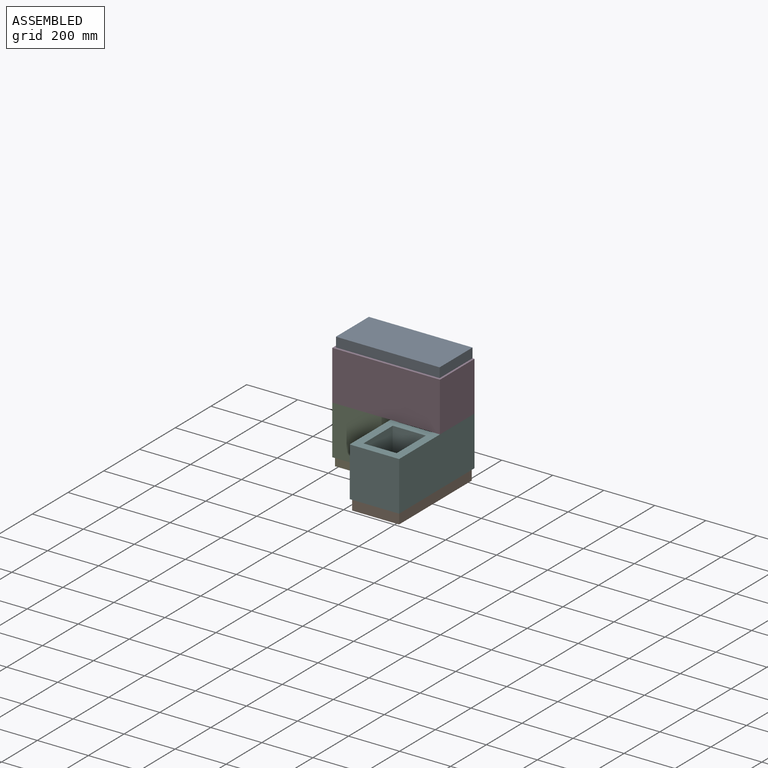
[diagram: assembled view]
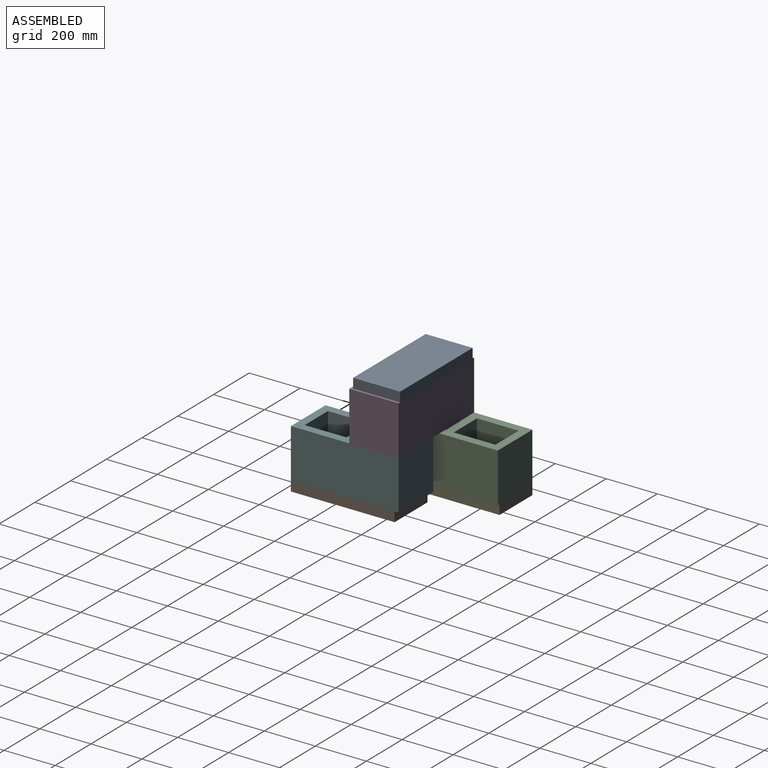
[diagram: assembled view, second angle]
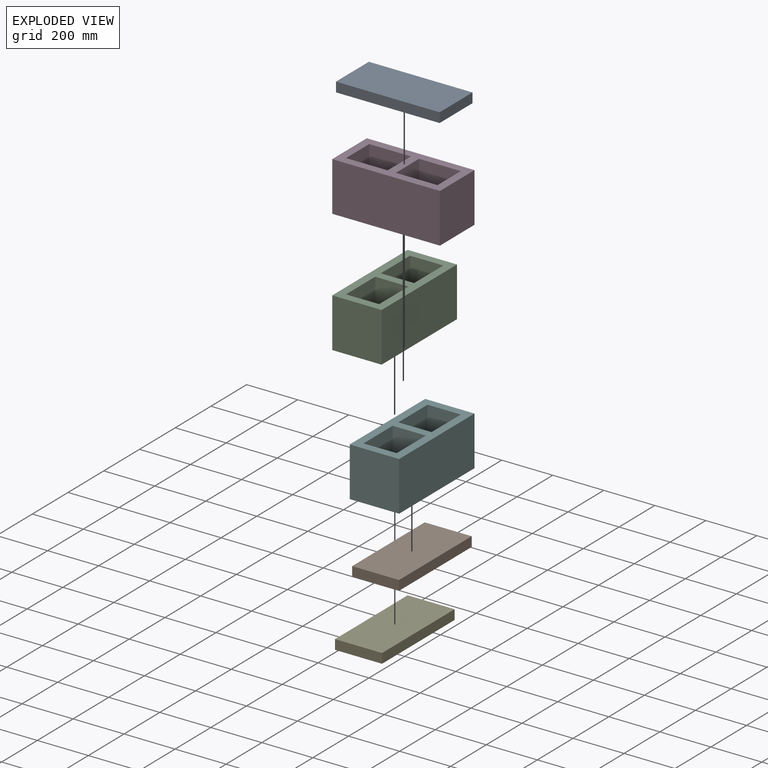
[diagram: exploded view]
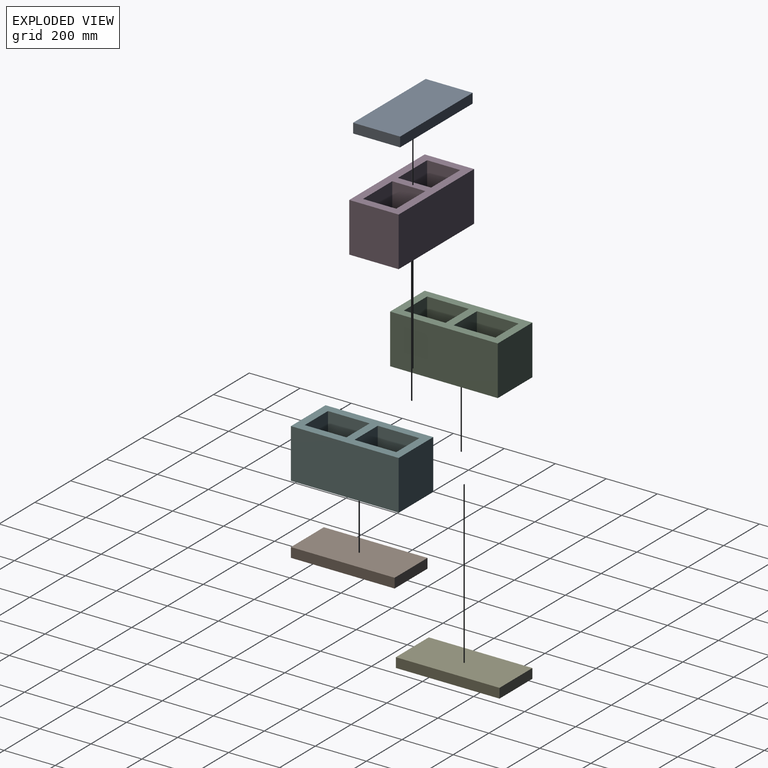
[diagram: exploded view, second angle]
ASSEMBLY  parts=6 mates=14
PART A: 6 faces, bbox 406.4x184.2x38.1 mm
  f0: plane 406.4x38.1mm, normal (0,1,0), area 15483.8mm2, adj f1,f3,f4,f5
  f1: plane 184.15x38.1mm, normal (-1,0,0), area 7016.1mm2, adj f0,f2,f4,f5
  f2: plane 406.4x38.1mm, normal (0,-1,0), area 15483.8mm2, adj f1,f3,f4,f5
  f3: plane 184.15x38.1mm, normal (1,0,0), area 7016.1mm2, adj f0,f2,f4,f5
  f4: plane 406.4x184.15mm, normal (0,0,1), area 74838.6mm2, adj f0,f1,f2,f3
  f5: plane 406.4x184.15mm, normal (0,0,-1), area 74838.6mm2, adj f0,f1,f2,f3
PART B: same geometry as A
PART C: 14 faces, bbox 422.3x193.7x193.7 mm
  f0: plane 422.28x193.68mm, normal (0,-1,0), area 81784.1mm2, adj f1,f11,f12,f13
  f1: plane 193.68x193.68mm, normal (1,0,0), area 37510mm2, adj f0,f2,f12,f13
  f2: plane 422.28x193.68mm, normal (0,1,0), area 81784.1mm2, adj f1,f11,f12,f13
  f3: plane 193.68x130.18mm, normal (1,0,0), area 25211.6mm2, adj f4,f9,f12,f13
  f4: plane 193.68x163.51mm, normal (0,-1,0), area 31668.3mm2, adj f3,f5,f12,f13
  f5: plane 193.68x130.18mm, normal (-1,0,0), area 25211.6mm2, adj f4,f9,f12,f13
  f6: plane 193.68x130.18mm, normal (1,0,0), area 25211.6mm2, adj f7,f10,f12,f13
  f7: plane 193.68x163.51mm, normal (0,-1,0), area 31668.3mm2, adj f6,f8,f12,f13
  f8: plane 193.68x130.18mm, normal (-1,0,0), area 25211.6mm2, adj f7,f10,f12,f13
  f9: plane 193.68x163.51mm, normal (0,1,0), area 31668.3mm2, adj f3,f5,f12,f13
  f10: plane 193.68x163.51mm, normal (0,1,0), area 31668.3mm2, adj f6,f8,f12,f13
  f11: plane 193.68x193.68mm, normal (-1,0,0), area 37510mm2, adj f0,f2,f12,f13
  f12: plane 422.28x193.68mm, normal (0,0,1), area 39213.6mm2, adj f0,f1,f2,f3,f4,f5,f6,f7
  f13: plane 422.28x193.68mm, normal (0,0,-1), area 39213.6mm2, adj f0,f1,f2,f3,f4,f5,f6,f7
PART D: same geometry as C
PART E: same geometry as A
PART F: same geometry as C
PLACE A t=(-186.7,65.88,4.67)mm
PLACE B rot(axis=(0,0,1),90deg) t=(43.49,-356.4,-420.78)mm
PLACE C rot(axis=(0,0,1),90deg) t=(-97.8,83.34,-382.68)mm
PLACE D t=(16.5,-30.96,-189)mm
PLACE E rot(axis=(0,0,1),90deg) t=(-194.64,-111.92,-420.78)mm
PLACE F rot(axis=(0,0,1),90deg) t=(130.8,-145.26,-382.68)mm
MATE planar B.f1 <-> F.f11  axis (0,-1,0) through (135.56,-356.4,-401.73)mm
MATE planar F.f12 <-> D.f13  axis (0,0,1) through (130.8,-145.26,-189)mm
MATE planar A.f5 <-> D.f12  axis (0,0,-1) through (16.5,-26.2,4.67)mm
MATE planar F.f1 <-> D.f2  axis (0,1,0) through (130.8,65.88,-285.84)mm
MATE planar C.f11 <-> D.f0  axis (0,-1,0) through (-97.8,-127.8,-285.84)mm
MATE planar F.f0 <-> B.f2  axis (1,0,0) through (227.64,-145.26,-285.84)mm
MATE planar E.f4 <-> C.f13  axis (0,0,1) through (-102.56,91.28,-382.68)mm
MATE planar A.f0 <-> D.f2  axis (0,1,0) through (16.5,65.88,23.72)mm
MATE planar C.f1 <-> E.f3  axis (0,1,0) through (-97.8,294.48,-285.84)mm
MATE planar C.f2 <-> D.f11  axis (-1,0,0) through (-194.64,83.34,-285.84)mm
MATE planar C.f12 <-> D.f13  axis (0,0,1) through (-32.71,262.73,-189)mm
MATE planar E.f0 <-> C.f2  axis (-1,0,0) through (-194.64,91.28,-401.73)mm
MATE planar B.f4 <-> F.f13  axis (0,0,1) through (135.56,-153.2,-382.68)mm
MATE planar F.f0 <-> D.f1  axis (1,0,0) through (227.64,-145.26,-285.84)mm
